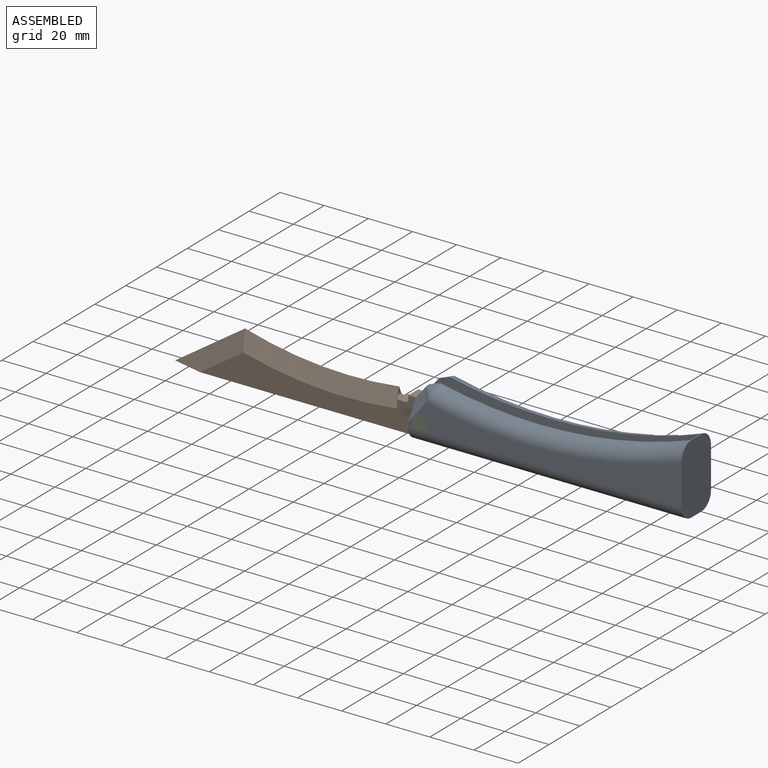
[diagram: assembled view]
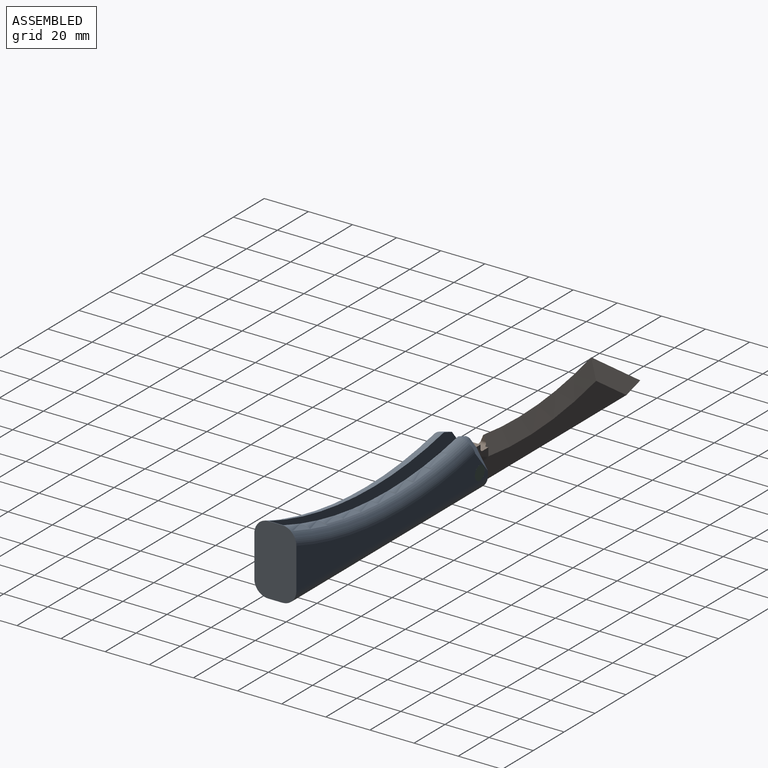
[diagram: assembled view, second angle]
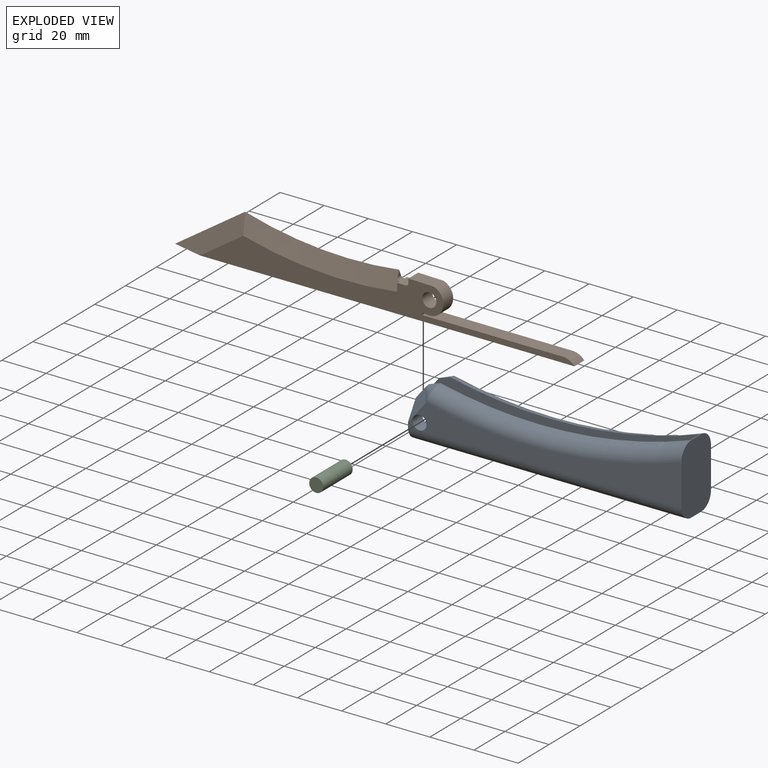
[diagram: exploded view]
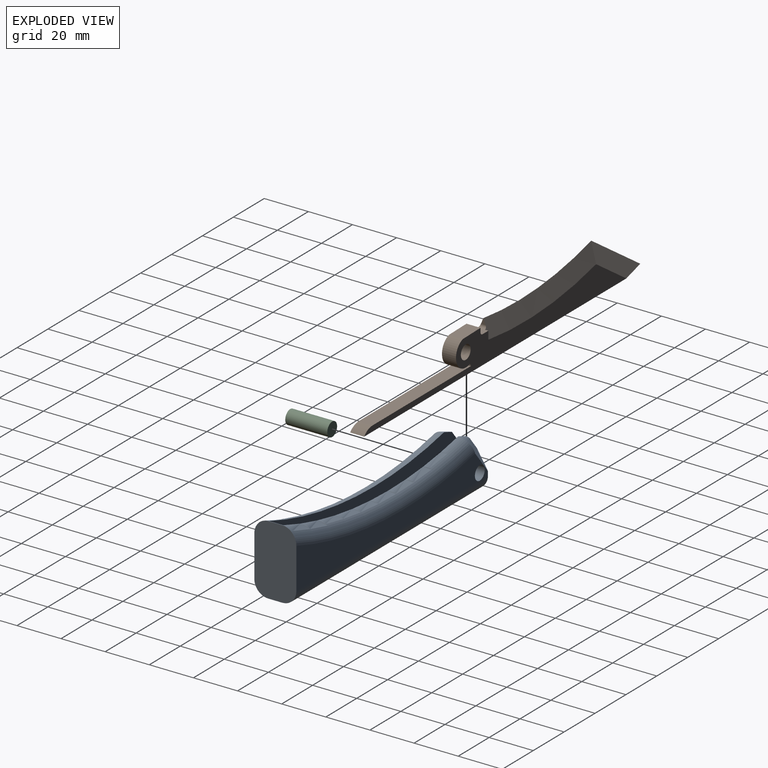
[diagram: exploded view, second angle]
ASSEMBLY  parts=3 mates=2
PART A: 28 faces, bbox 133.7x40.6x19.1 mm
  f0: plane 52.95x6.35mm, normal (0,1,0), area 336.3mm2, adj f9,f14,f21,f23
  f1: cylinder r=204.83mm len=6.35mm, axis (0,0,-1), area 4.3mm2, adj f8,f14,f20,f22
  f2: plane 6.49x5.19mm, normal (0.78,-0.62,0), area 10.1mm2, adj f4,f5,f26,f27
  f3: cylinder r=3.17mm len=6.35mm, axis (0,0,-1), area 126.7mm2, adj f5,f6
  f4: plane 16.44x6.35mm, normal (1,0,0), area 75.1mm2, adj f2,f5,f6,f23,f26
  f5: plane 123.38x31.52mm, normal (0,0,1), area 2673.8mm2, adj f2,f3,f4,f7,f8,f9,f10,f11
  f6: plane 124.01x18.67mm, normal (0,0,-1), area 1188.7mm2, adj f3,f4,f14,f22,f23,f26
  f7: plane 51.07x6.35mm, normal (0,-1,0), area 324.3mm2, adj f5,f8,f10,f15
  f8: plane 30.89x6.35mm, normal (1,0,0), area 196.1mm2, adj f1,f5,f7,f15
  f9: cylinder r=7.15mm len=6.35mm, axis (0,0,-1), area 39.5mm2, adj f0,f5,f13,f15
  f10: cylinder r=8.42mm len=6.59mm, axis (0,0,-1), area 47.1mm2, adj f5,f7,f11,f15
  f11: plane 51.8x6.35mm, normal (0,-1,0), area 328.9mm2, adj f5,f10,f12,f15
  f12: plane 6.35x0.96mm, normal (1,0,0), area 6.1mm2, adj f5,f11,f13,f15
  f13: plane 51.67x6.35mm, normal (0,1,0), area 328.1mm2, adj f5,f9,f12,f15
  f14: plane 31.75x19.05mm, normal (-1,0,0), area 569.2mm2, adj f0,f1,f6,f19,f20,f21,f22,f23
  f15: plane 123.38x31.52mm, normal (0,0,-1), area 2673.8mm2, adj f7,f8,f9,f10,f11,f12,f13,f16
  f16: plane 6.49x5.19mm, normal (0.78,-0.62,0), area 10.1mm2, adj f15,f17,f24,f25
  f17: plane 16.44x6.35mm, normal (1,0,0), area 75.1mm2, adj f15,f16,f19,f21,f24
  f18: cylinder r=3.17mm len=6.35mm, axis (0,0,-1), area 126.7mm2, adj f15,f19
  f19: plane 124.01x18.67mm, normal (0,0,1), area 1188.7mm2, adj f14,f17,f18,f20,f21,f24
  f20: torus R=211.18mm, axis (0,0,1), area 1159.1mm2, adj f1,f14,f15,f19,f25
  f21: cylinder r=6.35mm len=124.01mm, axis (-1,0,0), area 1237mm2, adj f0,f14,f15,f17,f19
  f22: torus R=211.18mm, axis (0,0,1), area 1159.1mm2, adj f1,f5,f6,f14,f27
  f23: cylinder r=6.35mm len=124.01mm, axis (-1,0,0), area 1237mm2, adj f0,f4,f5,f6,f14
  f24: plane 13.5x8.26mm, normal (0.55,-0.44,0.71), area 72.2mm2, adj f16,f17,f19,f25
  f25: bspline ~6.88x6.08mm, area 36.1mm2, adj f15,f16,f20,f24
  f26: plane 13.5x8.26mm, normal (0.55,-0.44,-0.71), area 72.2mm2, adj f2,f4,f6,f27
  f27: bspline ~6.88x6.08mm, area 36.1mm2, adj f2,f5,f22,f26
PART B: 21 faces, bbox 183.3x21.6x6.4 mm
  f0: cylinder r=1.27mm len=3.29mm, axis (0,0,-1), area 5.6mm2, adj f1,f6,f8,f19
  f1: plane 2.54x2.1mm, normal (-1,0,0), area 2.7mm2, adj f0,f6,f8
  f2: plane 183.27x6.35mm, normal (0,1,0), area 1120.7mm2, adj f3,f4,f5,f7,f11
  f3: plane 169.72x15.83mm, normal (0,0,1), area 1153.7mm2, adj f2,f5,f6,f10,f11,f12,f13,f14
  f4: plane 169.72x15.83mm, normal (0,0,-1), area 1153.7mm2, adj f2,f7,f8,f9,f11,f12,f13,f14
  f5: plane 33.13x21.59mm, normal (0.22,-0.32,0.92), area 256.1mm2, adj f2,f3,f6,f7
  f6: cone r=171.6mm half-angle=67.4deg, axis (0,0,1), area 581.7mm2, adj f0,f1,f3,f5,f8,f10
  f7: plane 33.13x21.59mm, normal (0.22,-0.32,-0.92), area 256.1mm2, adj f2,f4,f5,f8
  f8: cone r=179.22mm half-angle=67.4deg, axis (0,0,-1), area 581.7mm2, adj f0,f1,f4,f6,f7,f9
  f9: plane 3.71x1.54mm, normal (1,0,0), area 2.8mm2, adj f4,f8,f19
  f10: plane 3.71x1.54mm, normal (1,0,0), area 2.8mm2, adj f3,f6,f19
  f11: cylinder r=7.15mm len=6.35mm, axis (0,0,-1), area 39.5mm2, adj f2,f3,f4,f12
  f12: plane 63.5x6.35mm, normal (0,-1,0), area 403.2mm2, adj f3,f4,f11,f13
  f13: plane 6.35x0.48mm, normal (-1,0,0), area 3mm2, adj f3,f4,f12,f14
  f14: cylinder r=0.64mm len=6.35mm, axis (0,0,-1), area 7.8mm2, adj f3,f4,f13,f15
  f15: cylinder r=6.35mm len=12.41mm, axis (0,0,-1), area 129.4mm2, adj f3,f4,f14,f16
  f16: plane 11.43x6.35mm, normal (-0.02,-1,0), area 72.6mm2, adj f3,f4,f15,f17
  f17: plane 6.35x1.86mm, normal (1,0,0), area 11.8mm2, adj f3,f4,f16,f18
  f18: cylinder r=1.27mm len=6.35mm, axis (0,0,-1), area 12.7mm2, adj f3,f4,f17,f19
  f19: plane 6.35x3.81mm, normal (0,-1,0), area 24.2mm2, adj f0,f3,f4,f9,f10,f18
  f20: cylinder r=3.17mm len=6.35mm, axis (0,0,-1), area 126.7mm2, adj f3,f4
PART C: 3 faces, bbox 6.4x6.4x19.1 mm
  f0: cylinder r=3.17mm len=19.05mm, axis (0,0,-1), area 380mm2, adj f1,f2
  f1: plane 6.35x6.35mm, normal (0,0,1), area 31.7mm2, adj f0
  f2: plane 6.35x6.35mm, normal (0,0,-1), area 31.7mm2, adj f0
PLACE A rot(axis=(0,-0.71,0.71),180deg) t=(-64.11,0,-4.33)mm
PLACE B rot(axis=(0,0.71,-0.71),180deg) t=(-38.71,-9.52,-1.02)mm
PLACE C rot(axis=(0,0.71,-0.71),180deg) t=(-65.38,0,-2.29)mm
MATE fastened C.f0 <-> A.f3  axis (0,1,0) through (-65.38,0,-2.29)mm
MATE revolute B.f15 <-> A.f3  axis (0,-1,0) through (-65.38,-12.7,-2.29)mm
